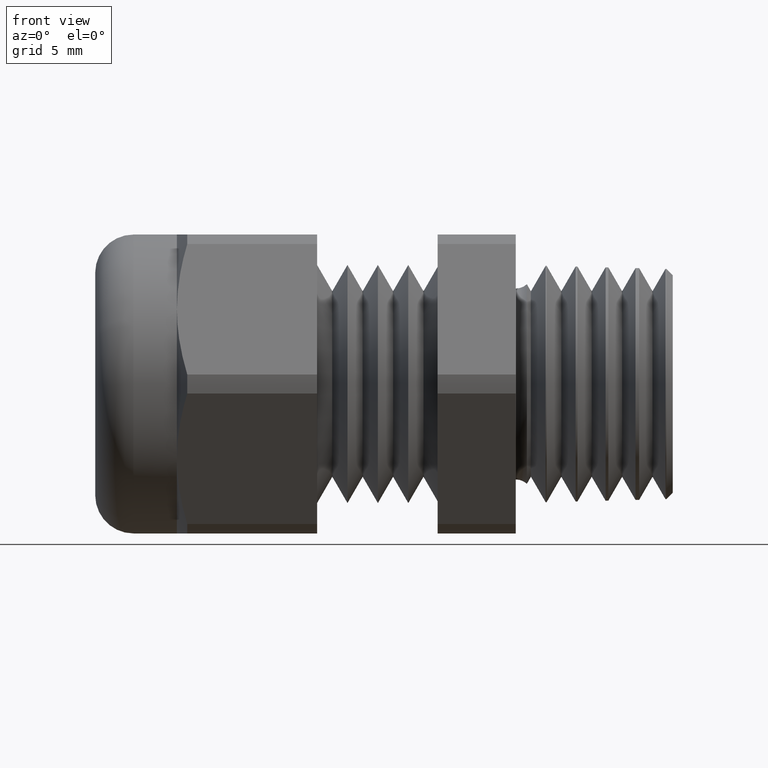
[diagram: clean part render]
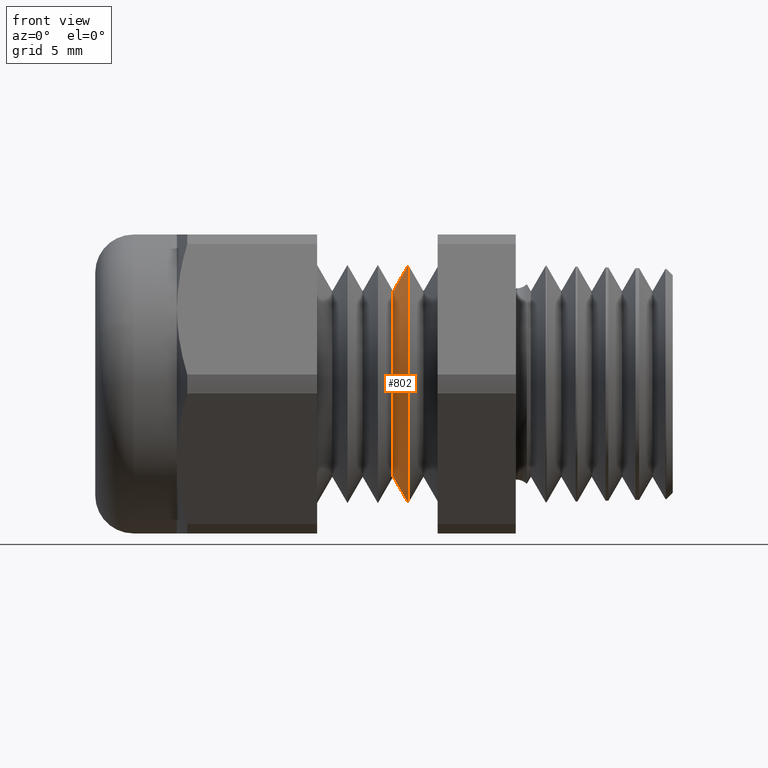
[diagram: same view with one face highlighted and labeled with its STEP entity id]
A machine part, front view. The second image highlights one B-rep face of the part: STEP entity #802.
In plain terms, the highlighted conical surface has half-angle 60 deg.
Its self-contained STEP definition (entity closure, byte-faithful):
#16 = VERTEX_POINT ( 'NONE', #867 ) ;
#250 = VERTEX_POINT ( 'NONE', #1357 ) ;
#308 = EDGE_CURVE ( 'NONE', #16, #250, #1447, .T. ) ;
#310 = EDGE_CURVE ( 'NONE', #3047, #413, #1443, .T. ) ;
#413 = VERTEX_POINT ( 'NONE', #1636 ) ;
#784 = ORIENTED_EDGE ( 'NONE', *, *, #785, .F. ) ;
#785 = EDGE_CURVE ( 'NONE', #413, #250, #2247, .T. ) ;
#802 = ADVANCED_FACE ( 'NONE', ( #2283 ), #2282, .T. ) ;
#803 = EDGE_LOOP ( 'NONE', ( #804, #805, #807, #784 ) ) ;
#804 = ORIENTED_EDGE ( 'NONE', *, *, #310, .F. ) ;
#805 = ORIENTED_EDGE ( 'NONE', *, *, #806, .T. ) ;
#806 = EDGE_CURVE ( 'NONE', #3047, #16, #2277, .T. ) ;
#807 = ORIENTED_EDGE ( 'NONE', *, *, #308, .T. ) ;
#867 = CARTESIAN_POINT ( 'NONE',  ( -0.2420833473208373100, 0.0000000000000000000, -0.1830384999999998300 ) ) ;
#1357 = CARTESIAN_POINT ( 'NONE',  ( -0.2120833333333335400, 0.0000000000000000000, -0.2349999999999998200 ) ) ;
#1440 = DIRECTION ( 'NONE',  ( 0.5000000000000037700, 1.060575238724904300E-016, 0.8660254037844364900 ) ) ;
#1441 = VECTOR ( 'NONE', #1440, 39.37007874015748100 ) ;
#1442 = CARTESIAN_POINT ( 'NONE',  ( -0.2420833473208373100, 2.241575131457326000E-017, 0.1830384999999998300 ) ) ;
#1443 = LINE ( 'NONE', #1442, #1441 ) ;
#1444 = DIRECTION ( 'NONE',  ( 0.5000000000000037700, 0.0000000000000000000, -0.8660254037844364900 ) ) ;
#1445 = VECTOR ( 'NONE', #1444, 39.37007874015748100 ) ;
#1446 = CARTESIAN_POINT ( 'NONE',  ( -0.2420833473208373100, 0.0000000000000000000, -0.1830384999999998300 ) ) ;
#1447 = LINE ( 'NONE', #1446, #1445 ) ;
#1636 = CARTESIAN_POINT ( 'NONE',  ( -0.2120833333333335400, 2.877919977996278600E-017, 0.2349999999999998200 ) ) ;
#2244 = DIRECTION ( 'NONE',  ( 0.0000000000000000000, 0.0000000000000000000, -1.000000000000000000 ) ) ;
#2245 = DIRECTION ( 'NONE',  ( 1.000000000000000000, 0.0000000000000000000, 0.0000000000000000000 ) ) ;
#2246 = AXIS2_PLACEMENT_3D ( 'NONE', #2253, #2245, #2244 ) ;
#2247 = CIRCLE ( 'NONE', #2246, 0.2349999999999998200 ) ;
#2253 = CARTESIAN_POINT ( 'NONE',  ( -0.2120833333333335400, 0.0000000000000000000, 0.0000000000000000000 ) ) ;
#2274 = DIRECTION ( 'NONE',  ( 0.0000000000000000000, 0.0000000000000000000, -1.000000000000000000 ) ) ;
#2275 = DIRECTION ( 'NONE',  ( 1.000000000000000000, 0.0000000000000000000, 0.0000000000000000000 ) ) ;
#2276 = AXIS2_PLACEMENT_3D ( 'NONE', #2281, #2275, #2274 ) ;
#2277 = CIRCLE ( 'NONE', #2276, 0.1830384999999998300 ) ;
#2278 = DIRECTION ( 'NONE',  ( 0.0000000000000000000, 0.0000000000000000000, -1.000000000000000000 ) ) ;
#2279 = DIRECTION ( 'NONE',  ( 1.000000000000000000, 0.0000000000000000000, 0.0000000000000000000 ) ) ;
#2280 = AXIS2_PLACEMENT_3D ( 'NONE', #2288, #2279, #2278 ) ;
#2281 = CARTESIAN_POINT ( 'NONE',  ( -0.2420833473208373100, 0.0000000000000000000, 0.0000000000000000000 ) ) ;
#2282 = CONICAL_SURFACE ( 'NONE', #2280, 0.1830384999999998300, 1.047197551196593400 ) ;
#2283 = FACE_OUTER_BOUND ( 'NONE', #803, .T. ) ;
#2288 = CARTESIAN_POINT ( 'NONE',  ( -0.2420833473208373100, 0.0000000000000000000, 0.0000000000000000000 ) ) ;
#2755 = CARTESIAN_POINT ( 'NONE',  ( -0.2420833473208373100, 2.559747554726802000E-017, 0.1830384999999998300 ) ) ;
#3047 = VERTEX_POINT ( 'NONE', #2755 ) ;